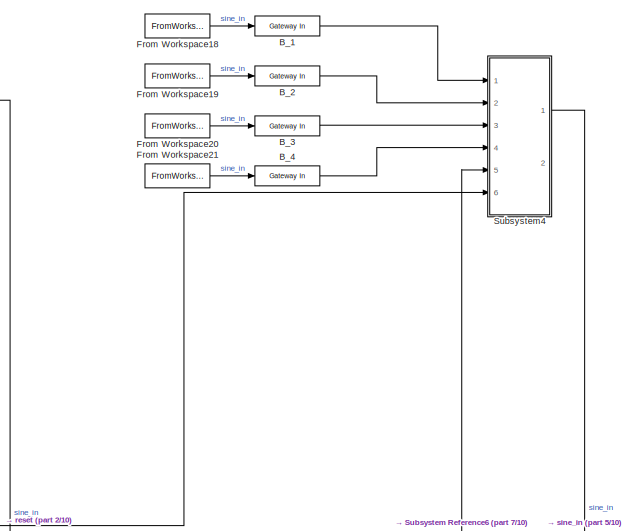
[diagram: root canvas - part 1/10, top right region]
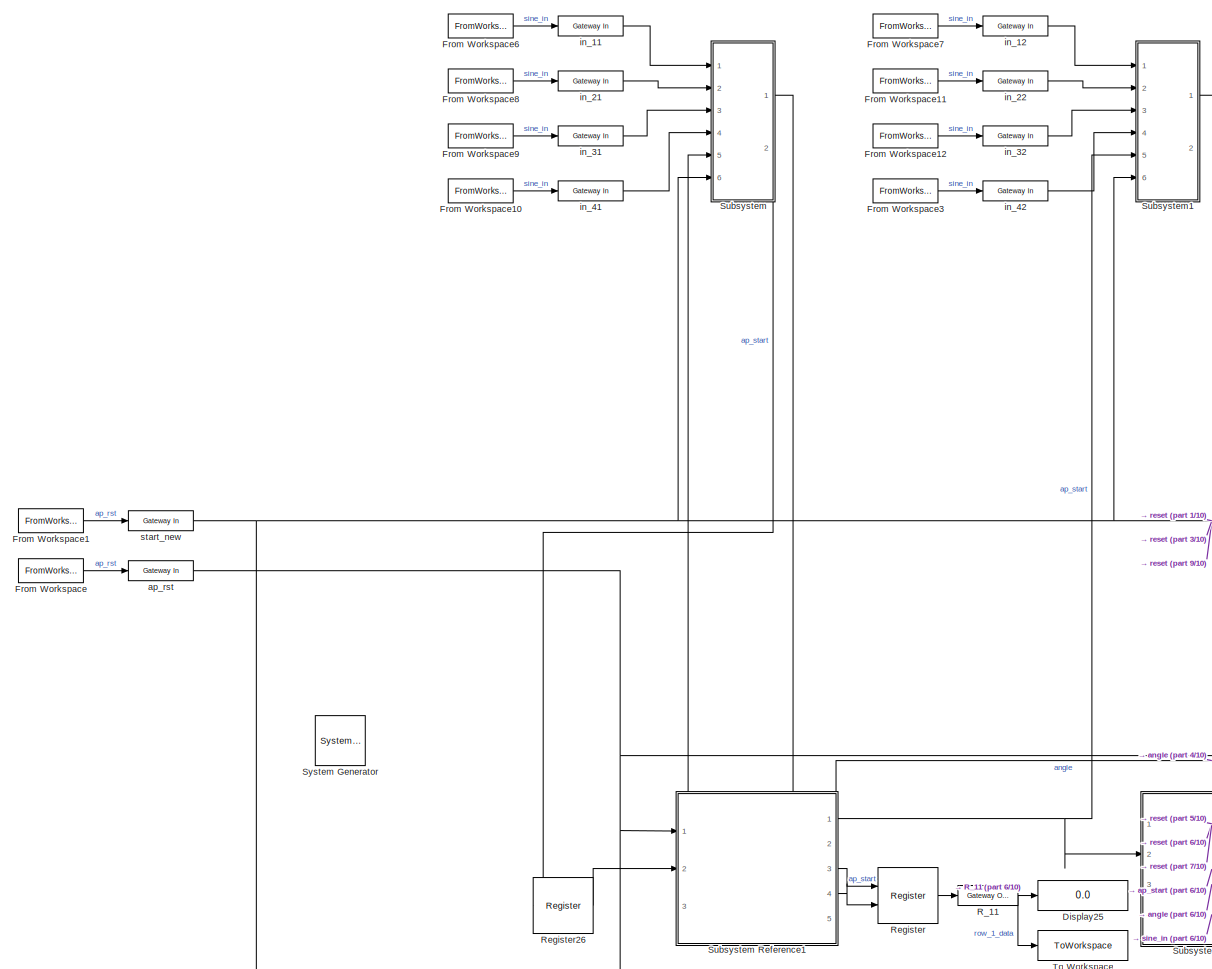
[diagram: root canvas - part 2/10, top left region]
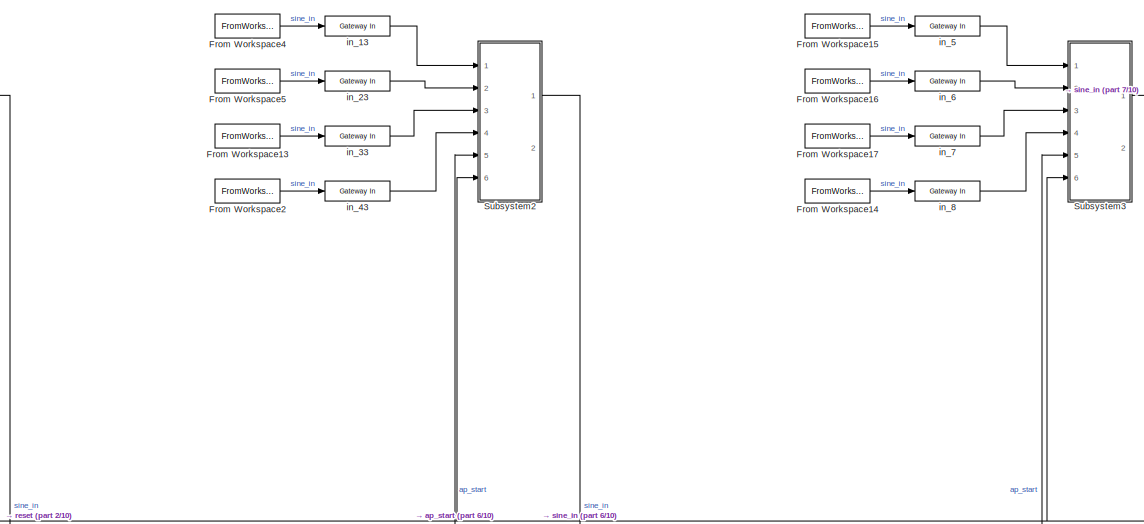
[diagram: root canvas - part 3/10, top center region]
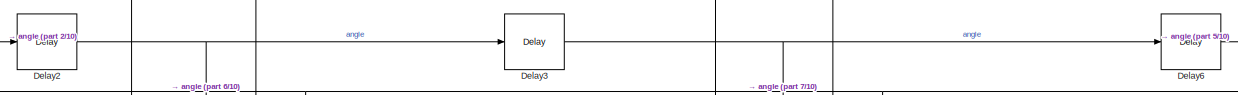
[diagram: root canvas - part 4/10, central region]
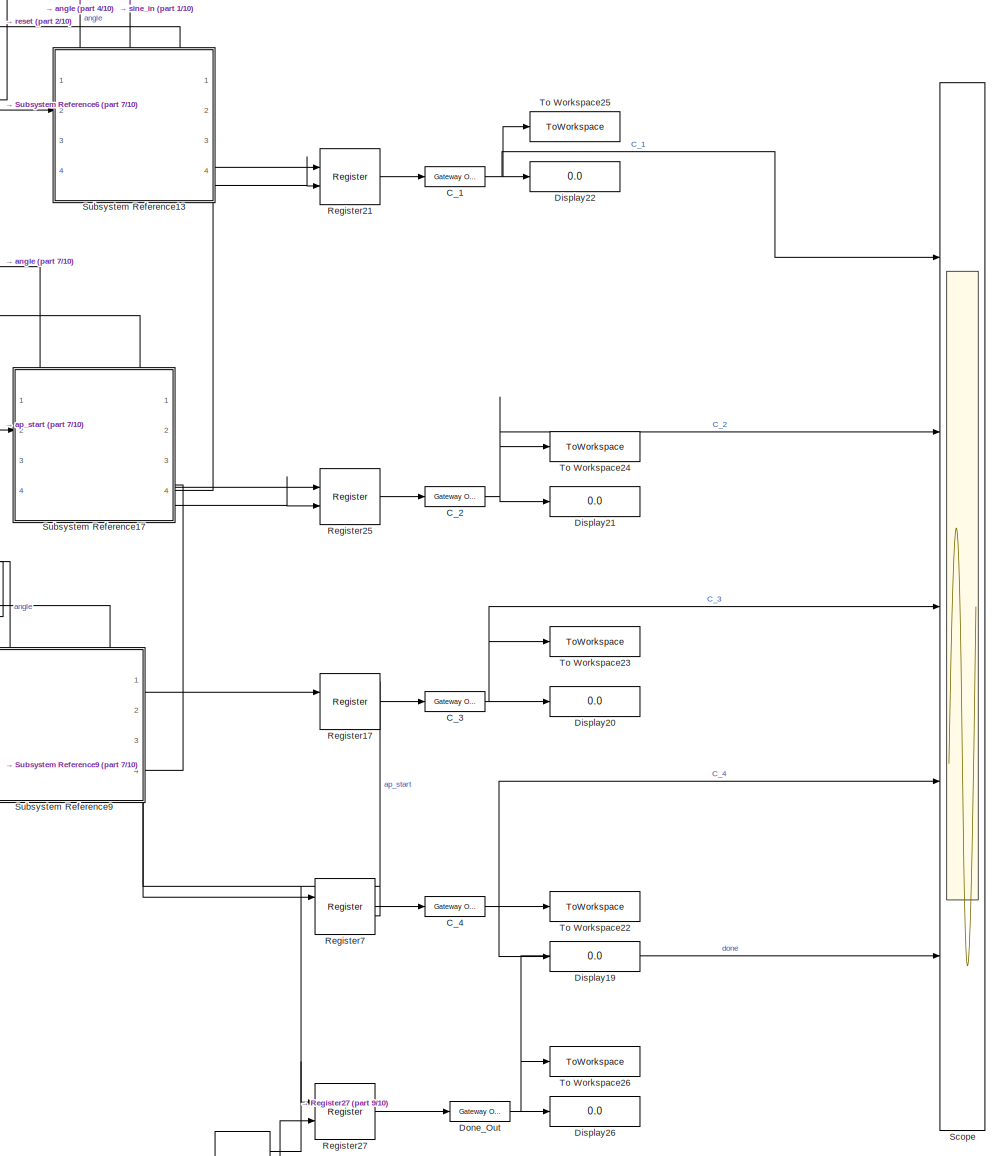
[diagram: root canvas - part 5/10, bottom right region]
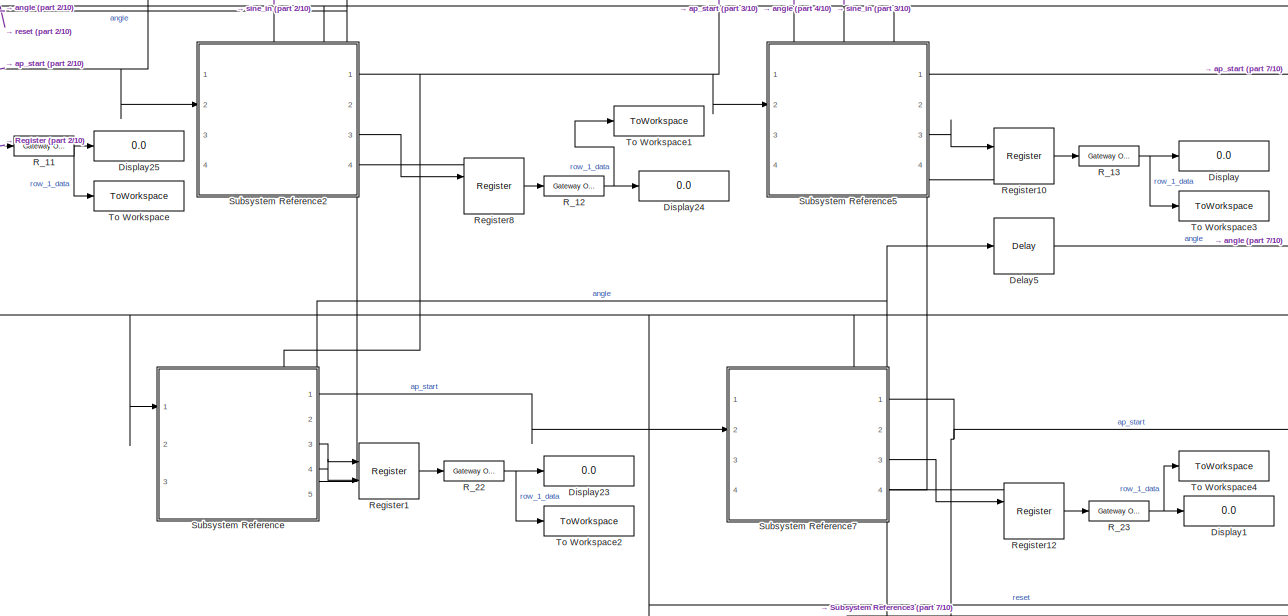
[diagram: root canvas - part 6/10, central region]
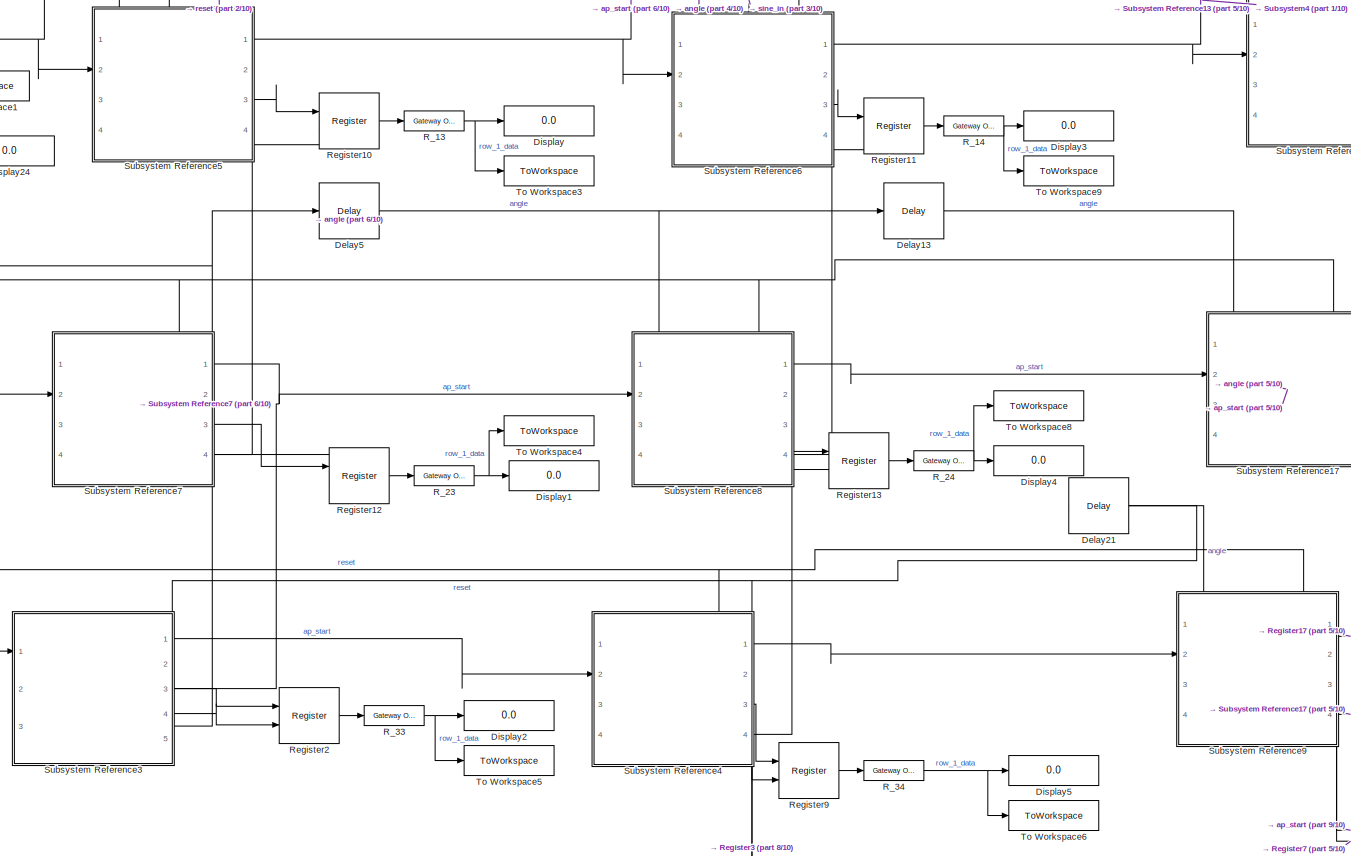
[diagram: root canvas - part 7/10, central region]
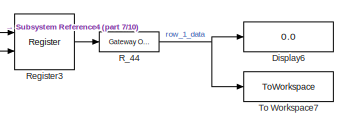
[diagram: root canvas - part 8/10, bottom right region]
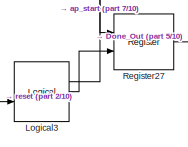
[diagram: root canvas - part 9/10, bottom right region]
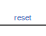
[diagram: root canvas - part 10/10, bottom center region]
MODEL slx_50d79141f9fc
KIND model
CONFIG AbsTol = auto
CONFIG EnableMultiTasking = off
CONFIG FixedStep = auto
CONFIG MaxStep = auto
CONFIG MinStep = auto
CONFIG RelTol = 1e-3
CONFIG SampleTimeConstraint = Unconstrained
CONFIG SolverName = VariableStepAuto
CONFIG StartTime = 0.0
CONFIG StopTime = double(sim_length)
BLOCK [Reference]  System Generator  REF=xbsIndex_r4/ System Generator
  AttributesFormatString = System\nGenerator
  Ports = []
  SourceBlock = xbsIndex_r4/ System Generator
  SourceType = Xilinx System Generator Block
  Tag = genX
  UserDataPersistent = on
BLOCK [Reference] B_1  REF=hdlBasic/Gateway In
  Ports = [1, 1]
  SourceBlock = hdlBasic/Gateway In
  SourceType = Gateway In Block
BLOCK [Reference] B_2  REF=hdlBasic/Gateway In
  Ports = [1, 1]
  SourceBlock = hdlBasic/Gateway In
  SourceType = Gateway In Block
BLOCK [Reference] B_3  REF=hdlBasic/Gateway In
  Ports = [1, 1]
  SourceBlock = hdlBasic/Gateway In
  SourceType = Gateway In Block
BLOCK [Reference] B_4  REF=hdlBasic/Gateway In
  Ports = [1, 1]
  SourceBlock = hdlBasic/Gateway In
  SourceType = Gateway In Block
BLOCK [Reference] C_1  REF=hdlBasic/Gateway Out
  Ports = [1, 1]
  SourceBlock = hdlBasic/Gateway Out
  SourceType = Gateway Out Block
BLOCK [Reference] C_2  REF=hdlBasic/Gateway Out
  Ports = [1, 1]
  SourceBlock = hdlBasic/Gateway Out
  SourceType = Gateway Out Block
BLOCK [Reference] C_3  REF=hdlBasic/Gateway Out
  Ports = [1, 1]
  SourceBlock = hdlBasic/Gateway Out
  SourceType = Gateway Out Block
BLOCK [Reference] C_4  REF=hdlBasic/Gateway Out
  Ports = [1, 1]
  SourceBlock = hdlBasic/Gateway Out
  SourceType = Gateway Out Block
BLOCK [Reference] Delay13  REF=hdlBasic/Delay
  NameLocation = top
  Ports = [1, 1]
  SourceBlock = hdlBasic/Delay
  SourceType = Delay Block
BLOCK [Reference] Delay2  REF=hdlBasic/Delay
  NameLocation = top
  Ports = [1, 1]
  SourceBlock = hdlBasic/Delay
  SourceType = Delay Block
BLOCK [Reference] Delay21  REF=hdlBasic/Delay
  NameLocation = top
  Ports = [1, 1]
  SourceBlock = hdlBasic/Delay
  SourceType = Delay Block
BLOCK [Reference] Delay3  REF=hdlBasic/Delay
  NameLocation = top
  Ports = [1, 1]
  SourceBlock = hdlBasic/Delay
  SourceType = Delay Block
BLOCK [Reference] Delay5  REF=hdlBasic/Delay
  NameLocation = top
  Ports = [1, 1]
  SourceBlock = hdlBasic/Delay
  SourceType = Delay Block
BLOCK [Reference] Delay6  REF=hdlBasic/Delay
  NameLocation = top
  Ports = [1, 1]
  SourceBlock = hdlBasic/Delay
  SourceType = Delay Block
BLOCK [Display] Display
  Decimation = 1
  Ports = [1]
BLOCK [Display] Display1
  Decimation = 1
  Ports = [1]
BLOCK [Display] Display19
  Decimation = 1
  Ports = [1]
BLOCK [Display] Display2
  Decimation = 1
  Ports = [1]
BLOCK [Display] Display20
  Decimation = 1
  Ports = [1]
BLOCK [Display] Display21
  Decimation = 1
  Ports = [1]
BLOCK [Display] Display22
  Decimation = 1
  Ports = [1]
BLOCK [Display] Display23
  Decimation = 1
  Ports = [1]
BLOCK [Display] Display24
  Decimation = 1
  Ports = [1]
BLOCK [Display] Display25
  Decimation = 1
  Ports = [1]
BLOCK [Display] Display26
  Decimation = 1
  Ports = [1]
BLOCK [Display] Display3
  Decimation = 1
  Ports = [1]
BLOCK [Display] Display4
  Decimation = 1
  Ports = [1]
BLOCK [Display] Display5
  Decimation = 1
  Ports = [1]
BLOCK [Display] Display6
  Decimation = 1
  Ports = [1]
BLOCK [Reference] Done_Out  REF=hdlBasic/Gateway Out
  Ports = [1, 1]
  SourceBlock = hdlBasic/Gateway Out
  SourceType = Gateway Out Block
BLOCK [FromWorkspace] From Workspace
  OutputAfterFinalValue = Setting to zero
  VariableName = ap_rst
BLOCK [FromWorkspace] From Workspace1
  OutputAfterFinalValue = Setting to zero
  VariableName = start_new
BLOCK [FromWorkspace] From Workspace10
  OutputAfterFinalValue = Setting to zero
  VariableName = in_41
BLOCK [FromWorkspace] From Workspace11
  OutputAfterFinalValue = Setting to zero
  VariableName = in_22
BLOCK [FromWorkspace] From Workspace12
  OutputAfterFinalValue = Setting to zero
  VariableName = in_32
BLOCK [FromWorkspace] From Workspace13
  OutputAfterFinalValue = Setting to zero
  VariableName = in_33
BLOCK [FromWorkspace] From Workspace14
  OutputAfterFinalValue = Setting to zero
  VariableName = in_44
BLOCK [FromWorkspace] From Workspace15
  OutputAfterFinalValue = Setting to zero
  VariableName = in_14
BLOCK [FromWorkspace] From Workspace16
  OutputAfterFinalValue = Setting to zero
  VariableName = in_24
BLOCK [FromWorkspace] From Workspace17
  OutputAfterFinalValue = Setting to zero
  VariableName = in_34
BLOCK [FromWorkspace] From Workspace18
  OutputAfterFinalValue = Setting to zero
  VariableName = Bin_1
BLOCK [FromWorkspace] From Workspace19
  OutputAfterFinalValue = Setting to zero
  VariableName = Bin_2
BLOCK [FromWorkspace] From Workspace2
  OutputAfterFinalValue = Setting to zero
  VariableName = in_43
BLOCK [FromWorkspace] From Workspace20
  OutputAfterFinalValue = Setting to zero
  VariableName = Bin_3
BLOCK [FromWorkspace] From Workspace21
  OutputAfterFinalValue = Setting to zero
  VariableName = Bin_4
BLOCK [FromWorkspace] From Workspace3
  OutputAfterFinalValue = Setting to zero
  VariableName = in_42
BLOCK [FromWorkspace] From Workspace4
  OutputAfterFinalValue = Setting to zero
  VariableName = in_13
BLOCK [FromWorkspace] From Workspace5
  OutputAfterFinalValue = Setting to zero
  VariableName = in_23
BLOCK [FromWorkspace] From Workspace6
  OutputAfterFinalValue = Setting to zero
  VariableName = in_11
BLOCK [FromWorkspace] From Workspace7
  OutputAfterFinalValue = Setting to zero
  VariableName = in_12
BLOCK [FromWorkspace] From Workspace8
  OutputAfterFinalValue = Setting to zero
  VariableName = in_21
BLOCK [FromWorkspace] From Workspace9
  OutputAfterFinalValue = Setting to zero
  VariableName = in_31
BLOCK [Reference] Logical3  REF=hdlBasic/Logical
  Ports = [2, 1]
  SourceBlock = hdlBasic/Logical
  SourceType = Logical Block Block
BLOCK [Reference] R_11  REF=hdlBasic/Gateway Out
  Ports = [1, 1]
  SourceBlock = hdlBasic/Gateway Out
  SourceType = Gateway Out Block
BLOCK [Reference] R_12  REF=hdlBasic/Gateway Out
  Ports = [1, 1]
  SourceBlock = hdlBasic/Gateway Out
  SourceType = Gateway Out Block
BLOCK [Reference] R_13  REF=hdlBasic/Gateway Out
  Ports = [1, 1]
  SourceBlock = hdlBasic/Gateway Out
  SourceType = Gateway Out Block
BLOCK [Reference] R_14  REF=hdlBasic/Gateway Out
  Ports = [1, 1]
  SourceBlock = hdlBasic/Gateway Out
  SourceType = Gateway Out Block
BLOCK [Reference] R_22  REF=hdlBasic/Gateway Out
  Ports = [1, 1]
  SourceBlock = hdlBasic/Gateway Out
  SourceType = Gateway Out Block
BLOCK [Reference] R_23  REF=hdlBasic/Gateway Out
  Ports = [1, 1]
  SourceBlock = hdlBasic/Gateway Out
  SourceType = Gateway Out Block
BLOCK [Reference] R_24  REF=hdlBasic/Gateway Out
  Ports = [1, 1]
  SourceBlock = hdlBasic/Gateway Out
  SourceType = Gateway Out Block
BLOCK [Reference] R_33  REF=hdlBasic/Gateway Out
  Ports = [1, 1]
  SourceBlock = hdlBasic/Gateway Out
  SourceType = Gateway Out Block
BLOCK [Reference] R_34  REF=hdlBasic/Gateway Out
  Ports = [1, 1]
  SourceBlock = hdlBasic/Gateway Out
  SourceType = Gateway Out Block
BLOCK [Reference] R_44  REF=hdlBasic/Gateway Out
  Ports = [1, 1]
  SourceBlock = hdlBasic/Gateway Out
  SourceType = Gateway Out Block
BLOCK [Reference] Register  REF=hdlBasic/Register
  Ports = [2, 1]
  SourceBlock = hdlBasic/Register
  SourceType = Register Block
BLOCK [Reference] Register1  REF=hdlBasic/Register
  Ports = [2, 1]
  SourceBlock = hdlBasic/Register
  SourceType = Register Block
BLOCK [Reference] Register10  REF=hdlBasic/Register
  Ports = [2, 1]
  SourceBlock = hdlBasic/Register
  SourceType = Register Block
BLOCK [Reference] Register11  REF=hdlBasic/Register
  Ports = [2, 1]
  SourceBlock = hdlBasic/Register
  SourceType = Register Block
BLOCK [Reference] Register12  REF=hdlBasic/Register
  Ports = [2, 1]
  SourceBlock = hdlBasic/Register
  SourceType = Register Block
BLOCK [Reference] Register13  REF=hdlBasic/Register
  Ports = [2, 1]
  SourceBlock = hdlBasic/Register
  SourceType = Register Block
BLOCK [Reference] Register17  REF=hdlBasic/Register
  Ports = [2, 1]
  SourceBlock = hdlBasic/Register
  SourceType = Register Block
BLOCK [Reference] Register2  REF=hdlBasic/Register
  Ports = [2, 1]
  SourceBlock = hdlBasic/Register
  SourceType = Register Block
BLOCK [Reference] Register21  REF=hdlBasic/Register
  Ports = [2, 1]
  SourceBlock = hdlBasic/Register
  SourceType = Register Block
BLOCK [Reference] Register25  REF=hdlBasic/Register
  Ports = [2, 1]
  SourceBlock = hdlBasic/Register
  SourceType = Register Block
BLOCK [Reference] Register26  REF=hdlBasic/Register
  Ports = [1, 1]
  SourceBlock = hdlBasic/Register
  SourceType = Register Block
BLOCK [Reference] Register27  REF=hdlBasic/Register
  Ports = [2, 1]
  SourceBlock = hdlBasic/Register
  SourceType = Register Block
BLOCK [Reference] Register3  REF=hdlBasic/Register
  Ports = [2, 1]
  SourceBlock = hdlBasic/Register
  SourceType = Register Block
BLOCK [Reference] Register7  REF=hdlBasic/Register
  Ports = [2, 1]
  SourceBlock = hdlBasic/Register
  SourceType = Register Block
BLOCK [Reference] Register8  REF=hdlBasic/Register
  Ports = [2, 1]
  SourceBlock = hdlBasic/Register
  SourceType = Register Block
BLOCK [Reference] Register9  REF=hdlBasic/Register
  Ports = [2, 1]
  SourceBlock = hdlBasic/Register
  SourceType = Register Block
BLOCK [Scope] Scope
  Floating = off
  NumInputPorts = 5
  Ports = [5]
  ScopeSpecificationString = Simulink.scopes.TimeScopeBlockCfg('CurrentConfiguration', extmgr.ConfigurationSet(extmgr.Configuration('Core','General UI',true),extmgr.Configuration('Core','Source UI',true),extmgr.Configuration('Sources','WiredSimulink',true,'DataLoggingVariableName','ScopeData47'),extmgr.Configuration('Visuals','Time Domain',true,'SerializedDisplays',{struct('MinYLimReal','-0.11597','MaxYLimReal','1.0437','YLab...<+6532ch>
BLOCK [SubSystem] Subsystem
  PortSchema = {"entries":[{"content":{"sides":[{"content":{"connectorIds":["In1","In2","In3","In4","In5","In6"]},"type":"ConnectorPlacement.EquallySpacedRectSide","uuid":"c9659870-197e-4708-9e56-aa8d60ec2132"},{"content":{"connectorIds":["Out1"],"side":"RIGHT"},"type":"ConnectorPlacement.EquallySpacedRectSide","uuid":"f9d7c189-098f-4a24-828d-c7ef82e0ce16"},{"content":{"connectorIds":[],"side":"TOP"},"type":"Con...<+420ch>  <repeated x5 — deduplicated; at blocks: Subsystem, Subsystem1, Subsystem2, Subsystem3, Subsystem4>
  Ports = [6, 2]
  ReferencedSubsystem = input_muxer
  RequestExecContextInheritance = off
BLOCK [SubSystem] Subsystem Reference
  PortSchema = {"entries":[{"content":{"sides":[{"content":{"connectorIds":["In1"]},"type":"ConnectorPlacement.EquallySpacedRectSide","uuid":"e73d0d7d-03bc-4d00-801b-b8c760b16be4"},{"content":{"connectorIds":["Out1","Out3","Out4"],"side":"RIGHT"},"type":"ConnectorPlacement.EquallySpacedRectSide","uuid":"fb412951-8b1f-47f8-8fed-40e91e78b205"},{"content":{"connectorIds":["Out2","In3","In2"],"side":"TOP"},"type":"C...<+422ch>
  Ports = [3, 5]
  ReferencedSubsystem = ATAN_static
  RequestExecContextInheritance = off
BLOCK [SubSystem] Subsystem Reference1
  PortSchema = {"entries":[{"content":{"sides":[{"content":{"connectorIds":["In1","In2"]},"type":"ConnectorPlacement.EquallySpacedRectSide","uuid":"e73d0d7d-03bc-4d00-801b-b8c760b16be4"},{"content":{"connectorIds":["Out1","Out3","Out4"],"side":"RIGHT"},"type":"ConnectorPlacement.EquallySpacedRectSide","uuid":"fb412951-8b1f-47f8-8fed-40e91e78b205"},{"content":{"connectorIds":["Out2","In3"],"side":"TOP"},"type":"C...<+422ch>
  Ports = [3, 5]
  ReferencedSubsystem = ATAN_static
  RequestExecContextInheritance = off
BLOCK [SubSystem] Subsystem Reference13
  PortSchema = {"entries":[{"content":{"sides":[{"content":{"connectorIds":["In2"]},"type":"ConnectorPlacement.EquallySpacedRectSide","uuid":"e73d0d7d-03bc-4d00-801b-b8c760b16be4"},{"content":{"connectorIds":["Out1","Out3"],"side":"RIGHT"},"type":"ConnectorPlacement.EquallySpacedRectSide","uuid":"fb412951-8b1f-47f8-8fed-40e91e78b205"},{"content":{"connectorIds":["In3","In4","In1"],"side":"TOP"},"type":"Connector...<+421ch>  <repeated x8 — deduplicated; at blocks: Subsystem Reference13, Subsystem Reference17, Subsystem Reference2, Subsystem Reference4, Subsystem Reference5, Subsystem Reference6, Subsystem Reference7, Subsystem Reference8>
  Ports = [4, 4]
  ReferencedSubsystem = ROT_static
  RequestExecContextInheritance = off
BLOCK [SubSystem] Subsystem Reference17
  Ports = [4, 4]
  ReferencedSubsystem = ROT_static
  RequestExecContextInheritance = off
BLOCK [SubSystem] Subsystem Reference2
  Ports = [4, 4]
  ReferencedSubsystem = ROT_static
  RequestExecContextInheritance = off
BLOCK [SubSystem] Subsystem Reference3
  PortSchema = {"entries":[{"content":{"sides":[{"content":{"connectorIds":["In1"]},"type":"ConnectorPlacement.EquallySpacedRectSide","uuid":"e73d0d7d-03bc-4d00-801b-b8c760b16be4"},{"content":{"connectorIds":["Out1","Out3","Out4"],"side":"RIGHT"},"type":"ConnectorPlacement.EquallySpacedRectSide","uuid":"fb412951-8b1f-47f8-8fed-40e91e78b205"},{"content":{"connectorIds":["Out2","In3","In2"],"side":"TOP"},"type":"C...<+422ch>
  Ports = [3, 5]
  ReferencedSubsystem = ATAN_static
  RequestExecContextInheritance = off
BLOCK [SubSystem] Subsystem Reference4
  Ports = [4, 4]
  ReferencedSubsystem = ROT_static
  RequestExecContextInheritance = off
BLOCK [SubSystem] Subsystem Reference5
  Ports = [4, 4]
  ReferencedSubsystem = ROT_static
  RequestExecContextInheritance = off
BLOCK [SubSystem] Subsystem Reference6
  Ports = [4, 4]
  ReferencedSubsystem = ROT_static
  RequestExecContextInheritance = off
BLOCK [SubSystem] Subsystem Reference7
  Ports = [4, 4]
  ReferencedSubsystem = ROT_static
  RequestExecContextInheritance = off
BLOCK [SubSystem] Subsystem Reference8
  Ports = [4, 4]
  ReferencedSubsystem = ROT_static
  RequestExecContextInheritance = off
BLOCK [SubSystem] Subsystem Reference9
  PortSchema = {"entries":[{"content":{"sides":[{"content":{"connectorIds":["In2"]},"type":"ConnectorPlacement.EquallySpacedRectSide","uuid":"e73d0d7d-03bc-4d00-801b-b8c760b16be4"},{"content":{"connectorIds":["Out3","Out1"],"side":"RIGHT"},"type":"ConnectorPlacement.EquallySpacedRectSide","uuid":"fb412951-8b1f-47f8-8fed-40e91e78b205"},{"content":{"connectorIds":["In3","In4","In1"],"side":"TOP"},"type":"Connector...<+421ch>
  Ports = [4, 4]
  ReferencedSubsystem = ROT_static
  RequestExecContextInheritance = off
BLOCK [SubSystem] Subsystem1
  Ports = [6, 2]
  ReferencedSubsystem = input_muxer
  RequestExecContextInheritance = off
BLOCK [SubSystem] Subsystem2
  Ports = [6, 2]
  ReferencedSubsystem = input_muxer
  RequestExecContextInheritance = off
BLOCK [SubSystem] Subsystem3
  Ports = [6, 2]
  ReferencedSubsystem = input_muxer
  RequestExecContextInheritance = off
BLOCK [SubSystem] Subsystem4
  Ports = [6, 2]
  ReferencedSubsystem = input_muxer
  RequestExecContextInheritance = off
BLOCK [ToWorkspace] To Workspace
  FixptAsFi = on
  MaxDataPoints = inf
  Ports = [1]
  SampleTime = -1
  SaveFormat = Timeseries
  VariableName = R_11
BLOCK [ToWorkspace] To Workspace1
  FixptAsFi = on
  MaxDataPoints = inf
  Ports = [1]
  SampleTime = -1
  SaveFormat = Timeseries
  VariableName = R_12
BLOCK [ToWorkspace] To Workspace2
  FixptAsFi = on
  MaxDataPoints = inf
  Ports = [1]
  SampleTime = -1
  SaveFormat = Timeseries
  VariableName = R_22
BLOCK [ToWorkspace] To Workspace22
  FixptAsFi = on
  MaxDataPoints = inf
  Ports = [1]
  SampleTime = -1
  SaveFormat = Timeseries
  VariableName = C_4
BLOCK [ToWorkspace] To Workspace23
  FixptAsFi = on
  MaxDataPoints = inf
  Ports = [1]
  SampleTime = -1
  SaveFormat = Timeseries
  VariableName = C_3
BLOCK [ToWorkspace] To Workspace24
  FixptAsFi = on
  MaxDataPoints = inf
  Ports = [1]
  SampleTime = -1
  SaveFormat = Timeseries
  VariableName = C_2
BLOCK [ToWorkspace] To Workspace25
  FixptAsFi = on
  MaxDataPoints = inf
  Ports = [1]
  SampleTime = -1
  SaveFormat = Timeseries
  VariableName = C_1
BLOCK [ToWorkspace] To Workspace26
  FixptAsFi = on
  MaxDataPoints = inf
  Ports = [1]
  SampleTime = -1
  SaveFormat = Timeseries
  VariableName = Done_Out
BLOCK [ToWorkspace] To Workspace3
  FixptAsFi = on
  MaxDataPoints = inf
  Ports = [1]
  SampleTime = -1
  SaveFormat = Timeseries
  VariableName = R_13
BLOCK [ToWorkspace] To Workspace4
  FixptAsFi = on
  MaxDataPoints = inf
  Ports = [1]
  SampleTime = -1
  SaveFormat = Timeseries
  VariableName = R_23
BLOCK [ToWorkspace] To Workspace5
  FixptAsFi = on
  MaxDataPoints = inf
  Ports = [1]
  SampleTime = -1
  SaveFormat = Timeseries
  VariableName = R_33
BLOCK [ToWorkspace] To Workspace6
  FixptAsFi = on
  MaxDataPoints = inf
  Ports = [1]
  SampleTime = -1
  SaveFormat = Timeseries
  VariableName = R_34
BLOCK [ToWorkspace] To Workspace7
  FixptAsFi = on
  MaxDataPoints = inf
  Ports = [1]
  SampleTime = -1
  SaveFormat = Timeseries
  VariableName = R_44
BLOCK [ToWorkspace] To Workspace8
  FixptAsFi = on
  MaxDataPoints = inf
  Ports = [1]
  SampleTime = -1
  SaveFormat = Timeseries
  VariableName = R_24
BLOCK [ToWorkspace] To Workspace9
  FixptAsFi = on
  MaxDataPoints = inf
  Ports = [1]
  SampleTime = -1
  SaveFormat = Timeseries
  VariableName = R_14
BLOCK [Reference] ap_rst  REF=hdlBasic/Gateway In
  Ports = [1, 1]
  SourceBlock = hdlBasic/Gateway In
  SourceType = Gateway In Block
BLOCK [Reference] in_11  REF=hdlBasic/Gateway In
  Ports = [1, 1]
  SourceBlock = hdlBasic/Gateway In
  SourceType = Gateway In Block
BLOCK [Reference] in_12  REF=hdlBasic/Gateway In
  Ports = [1, 1]
  SourceBlock = hdlBasic/Gateway In
  SourceType = Gateway In Block
BLOCK [Reference] in_13  REF=hdlBasic/Gateway In
  Ports = [1, 1]
  SourceBlock = hdlBasic/Gateway In
  SourceType = Gateway In Block
BLOCK [Reference] in_21  REF=hdlBasic/Gateway In
  Ports = [1, 1]
  SourceBlock = hdlBasic/Gateway In
  SourceType = Gateway In Block
BLOCK [Reference] in_22  REF=hdlBasic/Gateway In
  Ports = [1, 1]
  SourceBlock = hdlBasic/Gateway In
  SourceType = Gateway In Block
BLOCK [Reference] in_23  REF=hdlBasic/Gateway In
  Ports = [1, 1]
  SourceBlock = hdlBasic/Gateway In
  SourceType = Gateway In Block
BLOCK [Reference] in_31  REF=hdlBasic/Gateway In
  Ports = [1, 1]
  SourceBlock = hdlBasic/Gateway In
  SourceType = Gateway In Block
BLOCK [Reference] in_32  REF=hdlBasic/Gateway In
  Ports = [1, 1]
  SourceBlock = hdlBasic/Gateway In
  SourceType = Gateway In Block
BLOCK [Reference] in_33  REF=hdlBasic/Gateway In
  Ports = [1, 1]
  SourceBlock = hdlBasic/Gateway In
  SourceType = Gateway In Block
BLOCK [Reference] in_41  REF=hdlBasic/Gateway In
  NameLocation = top
  Ports = [1, 1]
  SourceBlock = hdlBasic/Gateway In
  SourceType = Gateway In Block
BLOCK [Reference] in_42  REF=hdlBasic/Gateway In
  Ports = [1, 1]
  SourceBlock = hdlBasic/Gateway In
  SourceType = Gateway In Block
BLOCK [Reference] in_43  REF=hdlBasic/Gateway In
  Ports = [1, 1]
  SourceBlock = hdlBasic/Gateway In
  SourceType = Gateway In Block
BLOCK [Reference] in_5  REF=hdlBasic/Gateway In
  Ports = [1, 1]
  SourceBlock = hdlBasic/Gateway In
  SourceType = Gateway In Block
BLOCK [Reference] in_6  REF=hdlBasic/Gateway In
  Ports = [1, 1]
  SourceBlock = hdlBasic/Gateway In
  SourceType = Gateway In Block
BLOCK [Reference] in_7  REF=hdlBasic/Gateway In
  Ports = [1, 1]
  SourceBlock = hdlBasic/Gateway In
  SourceType = Gateway In Block
BLOCK [Reference] in_8  REF=hdlBasic/Gateway In
  Ports = [1, 1]
  SourceBlock = hdlBasic/Gateway In
  SourceType = Gateway In Block
BLOCK [Reference] start_new  REF=hdlBasic/Gateway In
  Ports = [1, 1]
  SourceBlock = hdlBasic/Gateway In
  SourceType = Gateway In Block
LINE B_1:1 -> Subsystem4:1
LINE B_2:1 -> Subsystem4:2
LINE B_3:1 -> Subsystem4:3
LINE B_4:1 -> Subsystem4:4
NET C_1:1 -> Display22:1, Scope:1, To Workspace25:1
NET C_2:1 -> Display21:1, Scope:2, To Workspace24:1
NET C_3:1 -> Display20:1, Scope:3, To Workspace23:1
NET C_4:1 -> Display19:1, Scope:4, To Workspace22:1
LINE Delay13:1 -> Subsystem Reference17:3
LINE Delay21:1 -> Subsystem Reference9:3
NET Delay2:1 -> Delay3:1, Subsystem Reference5:3
NET Delay3:1 -> Delay6:1, Subsystem Reference6:3
NET Delay5:1 -> Delay13:1, Subsystem Reference8:3
LINE Delay6:1 -> Subsystem Reference13:3
NET Done_Out:1 -> Display26:1, Scope:5, To Workspace26:1
LINE From Workspace10:1 -> in_41:1
LINE From Workspace11:1 -> in_22:1
LINE From Workspace12:1 -> in_32:1
LINE From Workspace13:1 -> in_33:1
LINE From Workspace14:1 -> in_8:1
LINE From Workspace15:1 -> in_5:1
LINE From Workspace16:1 -> in_6:1
LINE From Workspace17:1 -> in_7:1
LINE From Workspace18:1 -> B_1:1
LINE From Workspace19:1 -> B_2:1
LINE From Workspace1:1 -> start_new:1
LINE From Workspace20:1 -> B_3:1
LINE From Workspace21:1 -> B_4:1
LINE From Workspace2:1 -> in_43:1
LINE From Workspace3:1 -> in_42:1
LINE From Workspace4:1 -> in_13:1
LINE From Workspace5:1 -> in_23:1
LINE From Workspace6:1 -> in_11:1
LINE From Workspace7:1 -> in_12:1
LINE From Workspace8:1 -> in_21:1
LINE From Workspace9:1 -> in_31:1
LINE From Workspace:1 -> ap_rst:1
LINE Logical3:1 -> Register27:2
NET R_11:1 -> Display25:1, To Workspace:1
NET R_12:1 -> Display24:1, To Workspace1:1
NET R_13:1 -> Display:1, To Workspace3:1
NET R_14:1 -> Display3:1, To Workspace9:1
NET R_22:1 -> Display23:1, To Workspace2:1
NET R_23:1 -> Display1:1, To Workspace4:1
NET R_24:1 -> Display4:1, To Workspace8:1
NET R_33:1 -> Display2:1, To Workspace5:1
NET R_34:1 -> Display5:1, To Workspace6:1
NET R_44:1 -> Display6:1, To Workspace7:1
LINE Register10:1 -> R_13:1
LINE Register11:1 -> R_14:1
LINE Register12:1 -> R_23:1
LINE Register13:1 -> R_24:1
LINE Register17:1 -> C_3:1
LINE Register1:1 -> R_22:1
LINE Register21:1 -> C_1:1
LINE Register25:1 -> C_2:1
LINE Register26:1 -> Subsystem Reference1:2
LINE Register27:1 -> Done_Out:1
LINE Register2:1 -> R_33:1
LINE Register3:1 -> R_44:1
LINE Register7:1 -> C_4:1
LINE Register8:1 -> R_12:1
LINE Register9:1 -> R_34:1
LINE Register:1 -> R_11:1
LINE Subsystem Reference13:2 -> Subsystem Reference17:4
LINE Subsystem Reference13:3 -> Register21:1
LINE Subsystem Reference13:4 -> Register21:2
LINE Subsystem Reference17:2 -> Subsystem Reference9:4
LINE Subsystem Reference17:3 -> Register25:1
LINE Subsystem Reference17:4 -> Register25:2
NET Subsystem Reference1:1 -> Subsystem Reference2:2, Subsystem1:5, Subsystem:5
NET Subsystem Reference1:2 -> Delay2:1, Subsystem Reference2:3
LINE Subsystem Reference1:3 -> Register:1
LINE Subsystem Reference1:4 -> Register:2
NET Subsystem Reference2:1 -> Subsystem Reference5:2, Subsystem Reference:2, Subsystem2:5
LINE Subsystem Reference2:2 -> Subsystem Reference:3
LINE Subsystem Reference2:3 -> Register8:1
LINE Subsystem Reference2:4 -> Register8:2
LINE Subsystem Reference3:1 -> Subsystem Reference4:2
NET Subsystem Reference3:2 -> Delay21:1, Subsystem Reference4:3
LINE Subsystem Reference3:3 -> Register2:1
LINE Subsystem Reference3:4 -> Register2:2
LINE Subsystem Reference4:1 -> Subsystem Reference9:2
LINE Subsystem Reference4:2 -> Register3:1
LINE Subsystem Reference4:3 -> Register9:1
NET Subsystem Reference4:4 -> Register3:2, Register9:2
NET Subsystem Reference5:1 -> Subsystem Reference6:2, Subsystem3:5
LINE Subsystem Reference5:2 -> Subsystem Reference7:4
LINE Subsystem Reference5:3 -> Register10:1
LINE Subsystem Reference5:4 -> Register10:2
NET Subsystem Reference6:1 -> Subsystem Reference13:2, Subsystem4:5
LINE Subsystem Reference6:2 -> Subsystem Reference8:4
LINE Subsystem Reference6:3 -> Register11:1
LINE Subsystem Reference6:4 -> Register11:2
NET Subsystem Reference7:1 -> Subsystem Reference3:2, Subsystem Reference8:2
LINE Subsystem Reference7:2 -> Subsystem Reference3:3
LINE Subsystem Reference7:3 -> Register12:1
LINE Subsystem Reference7:4 -> Register12:2
LINE Subsystem Reference8:1 -> Subsystem Reference17:2
LINE Subsystem Reference8:2 -> Subsystem Reference4:4
LINE Subsystem Reference8:3 -> Register13:1
LINE Subsystem Reference8:4 -> Register13:2
LINE Subsystem Reference9:2 -> Register7:1
LINE Subsystem Reference9:3 -> Register17:1
NET Subsystem Reference9:4 -> Logical3:1, Register17:2, Register27:1, Register7:2
LINE Subsystem Reference:1 -> Subsystem Reference7:2
NET Subsystem Reference:2 -> Delay5:1, Subsystem Reference7:3
LINE Subsystem Reference:3 -> Register1:1
LINE Subsystem Reference:4 -> Register1:2
LINE Subsystem1:1 -> Subsystem Reference2:4
LINE Subsystem2:1 -> Subsystem Reference5:4
LINE Subsystem3:1 -> Subsystem Reference6:4
LINE Subsystem4:1 -> Subsystem Reference13:4
LINE Subsystem:1 -> Subsystem Reference1:3
LINE Subsystem:2 -> Register26:1
NET ap_rst:1 -> Subsystem Reference13:1, Subsystem Reference17:1, Subsystem Reference1:1, Subsystem Reference2:1, Subsystem Reference3:1, Subsystem Reference4:1, Subsystem Reference5:1, Subsystem Reference6:1, Subsystem Reference7:1, Subsystem Reference8:1, Subsystem Reference9:1, Subsystem Reference:1
LINE in_11:1 -> Subsystem:1
LINE in_12:1 -> Subsystem1:1
LINE in_13:1 -> Subsystem2:1
LINE in_21:1 -> Subsystem:2
LINE in_22:1 -> Subsystem1:2
LINE in_23:1 -> Subsystem2:2
LINE in_31:1 -> Subsystem:3
LINE in_32:1 -> Subsystem1:3
LINE in_33:1 -> Subsystem2:3
LINE in_41:1 -> Subsystem:4
LINE in_42:1 -> Subsystem1:4
LINE in_43:1 -> Subsystem2:4
LINE in_5:1 -> Subsystem3:1
LINE in_6:1 -> Subsystem3:2
LINE in_7:1 -> Subsystem3:3
LINE in_8:1 -> Subsystem3:4
NET start_new:1 -> Logical3:2, Subsystem1:6, Subsystem2:6, Subsystem3:6, Subsystem4:6, Subsystem:6
note: NET lines group one-source signal fan-out (src -> all destinations, sorted); 1:1 wires keep LINE
